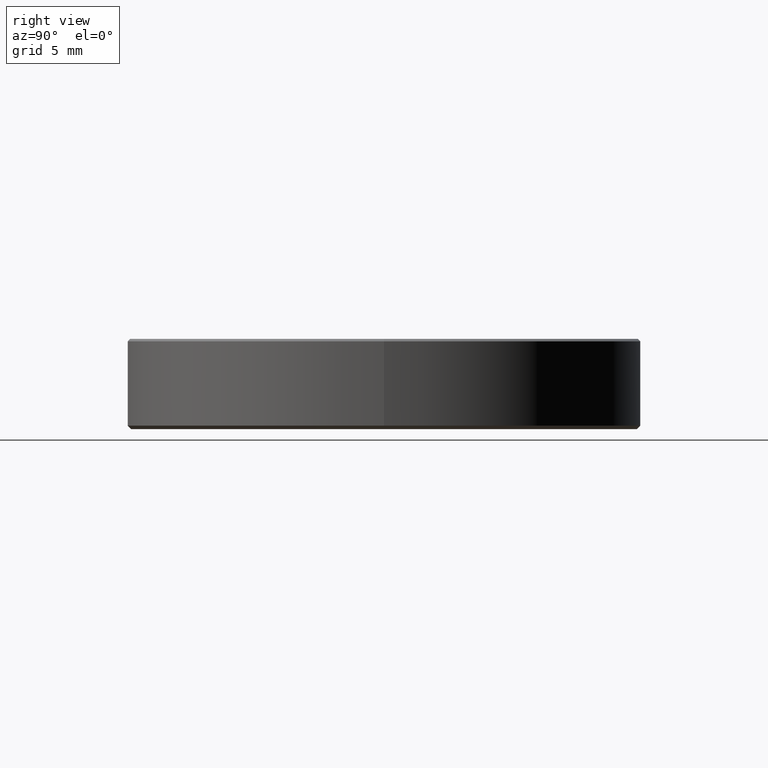
[diagram: clean part render]
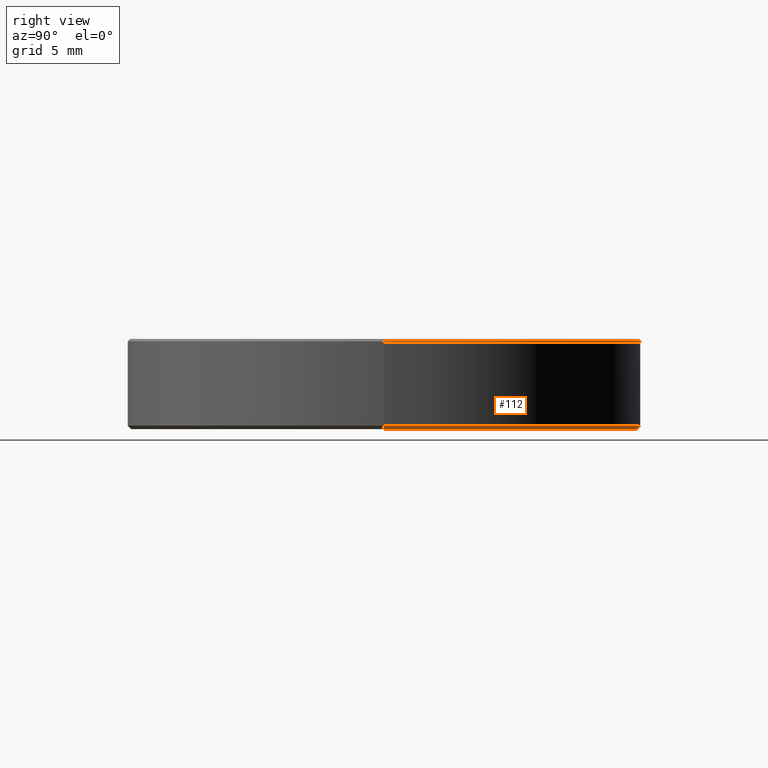
[diagram: same view with one face highlighted and labeled with its STEP entity id]
A machine part, right view. The second image highlights one B-rep face of the part: STEP entity #112.
In plain terms, the highlighted conical surface has half-angle 45 deg.
Its self-contained STEP definition (entity closure, byte-faithful):
#4 = LINE ( 'NONE', #237, #114 ) ;
#16 = CARTESIAN_POINT ( 'NONE',  ( 14.79999999999999361, 0.000000000000000000, 9.184850993605147944E-16 ) ) ;
#18 = CIRCLE ( 'NONE', #126, 15.00000000000000000 ) ;
#21 = ORIENTED_EDGE ( 'NONE', *, *, #238, .T. ) ;
#27 = EDGE_CURVE ( 'NONE', #193, #191, #4, .T. ) ;
#30 = VERTEX_POINT ( 'NONE', #92 ) ;
#33 = CARTESIAN_POINT ( 'NONE',  ( -14.79999999999999361, 1.824723730729555837E-15, 9.184850993605147944E-16 ) ) ;
#34 = CIRCLE ( 'NONE', #246, 14.79999999999999361 ) ;
#71 = CARTESIAN_POINT ( 'NONE',  ( 0.000000000000000000, 0.000000000000000000, 0.2000000000000048683 ) ) ;
#75 = AXIS2_PLACEMENT_3D ( 'NONE', #71, #101, #161 ) ;
#92 = CARTESIAN_POINT ( 'NONE',  ( -15.00000000000000000, 1.836970198721029589E-15, 0.2000000000000048683 ) ) ;
#95 = DIRECTION ( 'NONE',  ( 0.7071067811865505703, 0.000000000000000000, 0.7071067811865444641 ) ) ;
#99 = DIRECTION ( 'NONE',  ( 1.000000000000000000, 0.000000000000000000, 0.000000000000000000 ) ) ;
#101 = DIRECTION ( 'NONE',  ( -0.000000000000000000, -0.000000000000000000, 1.000000000000000000 ) ) ;
#105 = CARTESIAN_POINT ( 'NONE',  ( -15.00000000000000000, 1.836970198721029589E-15, 0.2000000000000048683 ) ) ;
#108 = EDGE_CURVE ( 'NONE', #191, #30, #18, .T. ) ;
#109 = ORIENTED_EDGE ( 'NONE', *, *, #140, .F. ) ;
#112 = ADVANCED_FACE ( 'NONE', ( #259 ), #162, .T. ) ;
#114 = VECTOR ( 'NONE', #95, 1000.000000000000000 ) ;
#120 = CARTESIAN_POINT ( 'NONE',  ( 0.000000000000000000, 0.000000000000000000, 0.2000000000000048683 ) ) ;
#126 = AXIS2_PLACEMENT_3D ( 'NONE', #120, #218, #217 ) ;
#132 = VERTEX_POINT ( 'NONE', #33 ) ;
#140 = EDGE_CURVE ( 'NONE', #132, #193, #34, .T. ) ;
#148 = LINE ( 'NONE', #105, #177 ) ;
#149 = EDGE_LOOP ( 'NONE', ( #109, #21, #256, #211 ) ) ;
#161 = DIRECTION ( 'NONE',  ( 1.000000000000000000, 0.000000000000000000, 0.000000000000000000 ) ) ;
#162 = CONICAL_SURFACE ( 'NONE', #75, 15.00000000000000000, 0.7853981633974526089 ) ;
#164 = CARTESIAN_POINT ( 'NONE',  ( 15.00000000000000000, 0.000000000000000000, 0.2000000000000048683 ) ) ;
#177 = VECTOR ( 'NONE', #224, 1000.000000000000000 ) ;
#191 = VERTEX_POINT ( 'NONE', #164 ) ;
#193 = VERTEX_POINT ( 'NONE', #16 ) ;
#198 = DIRECTION ( 'NONE',  ( 0.000000000000000000, 0.000000000000000000, -1.000000000000000000 ) ) ;
#200 = CARTESIAN_POINT ( 'NONE',  ( 0.000000000000000000, 0.000000000000000000, 9.184850993605147944E-16 ) ) ;
#211 = ORIENTED_EDGE ( 'NONE', *, *, #27, .F. ) ;
#217 = DIRECTION ( 'NONE',  ( 1.000000000000000000, 0.000000000000000000, 0.000000000000000000 ) ) ;
#218 = DIRECTION ( 'NONE',  ( -0.000000000000000000, -0.000000000000000000, 1.000000000000000000 ) ) ;
#224 = DIRECTION ( 'NONE',  ( -0.7071067811865505703, 8.659560562354969836E-17, 0.7071067811865444641 ) ) ;
#237 = CARTESIAN_POINT ( 'NONE',  ( 15.00000000000000000, 0.000000000000000000, 0.2000000000000048683 ) ) ;
#238 = EDGE_CURVE ( 'NONE', #132, #30, #148, .T. ) ;
#246 = AXIS2_PLACEMENT_3D ( 'NONE', #200, #198, #99 ) ;
#256 = ORIENTED_EDGE ( 'NONE', *, *, #108, .F. ) ;
#259 = FACE_OUTER_BOUND ( 'NONE', #149, .T. ) ;